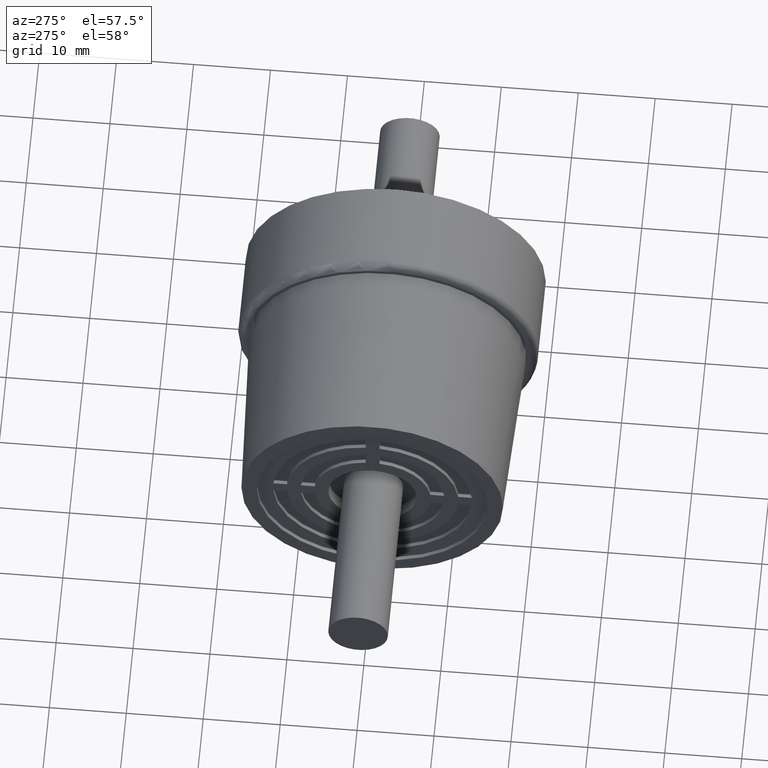
[diagram: clean part render]
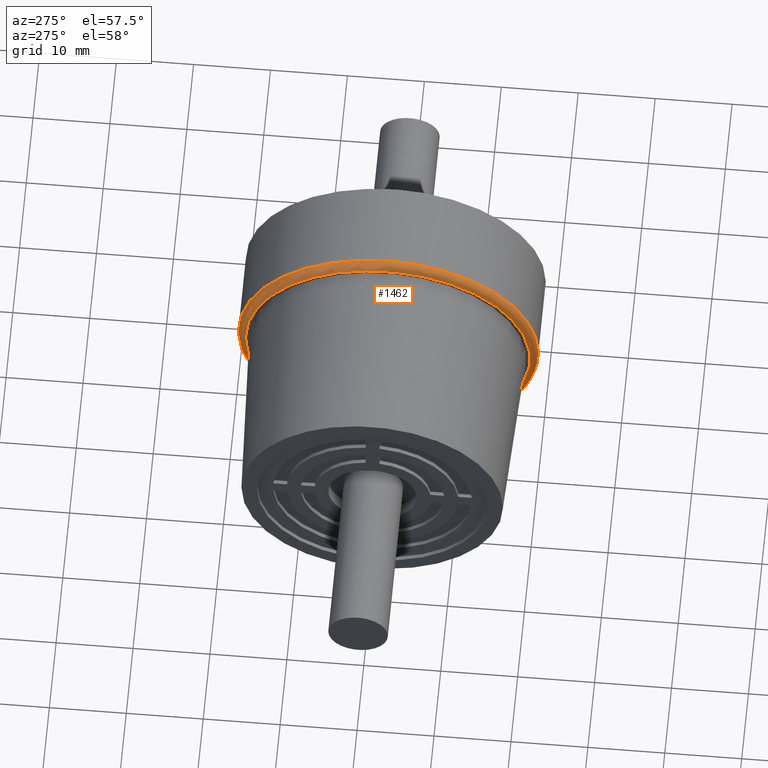
[diagram: same view with one face highlighted and labeled with its STEP entity id]
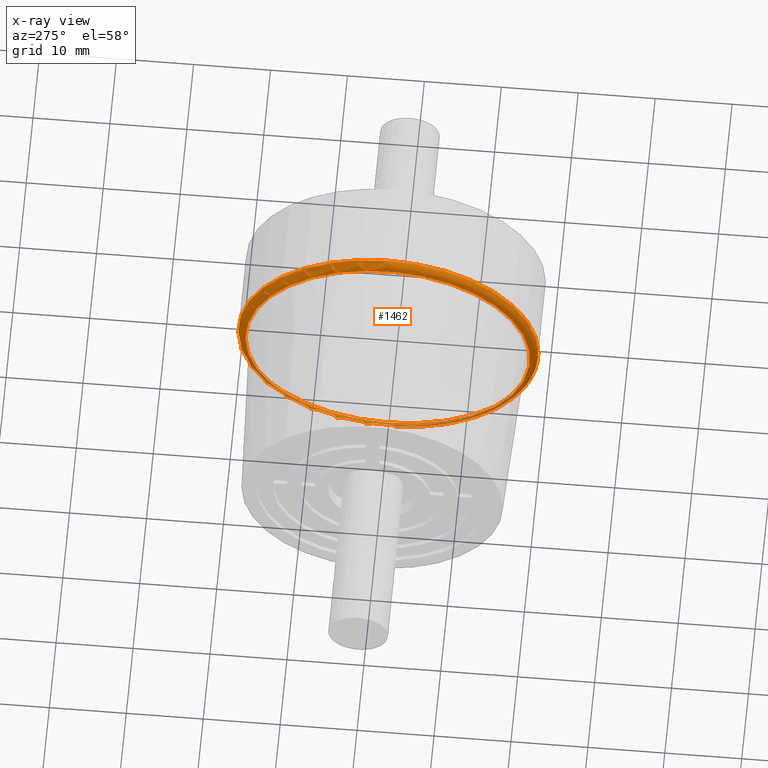
[diagram: x-ray of the same camera — body ghosted, the highlighted face saturated]
A machine part, auxiliary view. The second image highlights one B-rep face of the part: STEP entity #1462.
The next image is the same camera in x-ray: the body ghosted, the highlighted face saturated — about 17% of this face is hidden behind the body in this view.
In plain terms, the highlighted toroidal blend (fillet) surface has major radius 18.5 mm and minor (blend) radius 1 mm.
Its self-contained STEP definition (entity closure, byte-faithful):
#366=FACE_BOUND('',#493,.T.);
#396=FACE_OUTER_BOUND('',#492,.T.);
#492=EDGE_LOOP('',(#1047));
#493=EDGE_LOOP('',(#1048));
#618=CIRCLE('',#1561,18.5);
#619=CIRCLE('',#1562,19.5);
#697=VERTEX_POINT('',#2217);
#698=VERTEX_POINT('',#2219);
#840=EDGE_CURVE('',#697,#697,#618,.T.);
#841=EDGE_CURVE('',#698,#698,#619,.T.);
#1047=ORIENTED_EDGE('',*,*,#840,.T.);
#1048=ORIENTED_EDGE('',*,*,#841,.T.);
#1461=TOROIDAL_SURFACE('',#1560,18.5,1.);
#1462=ADVANCED_FACE('',(#396,#366),#1461,.T.);
#1560=AXIS2_PLACEMENT_3D('',#2216,#1737,#1738);
#1561=AXIS2_PLACEMENT_3D('',#2218,#1739,#1740);
#1562=AXIS2_PLACEMENT_3D('',#2220,#1741,#1742);
#1737=DIRECTION('center_axis',(1.,0.,0.));
#1738=DIRECTION('ref_axis',(0.,0.,-1.));
#1739=DIRECTION('center_axis',(1.,0.,0.));
#1740=DIRECTION('ref_axis',(0.,-1.,1.83697019872103E-16));
#1741=DIRECTION('center_axis',(-1.,0.,0.));
#1742=DIRECTION('ref_axis',(0.,-1.,1.83697019872103E-16));
#2216=CARTESIAN_POINT('Origin',(6.49999999999999,0.,0.));
#2217=CARTESIAN_POINT('',(5.49999999999999,18.5,-1.1327982892113E-15));
#2218=CARTESIAN_POINT('Origin',(5.49999999999999,0.,0.));
#2219=CARTESIAN_POINT('',(6.49999999999999,19.5,-5.97015314584335E-15));
#2220=CARTESIAN_POINT('Origin',(6.49999999999999,0.,0.));